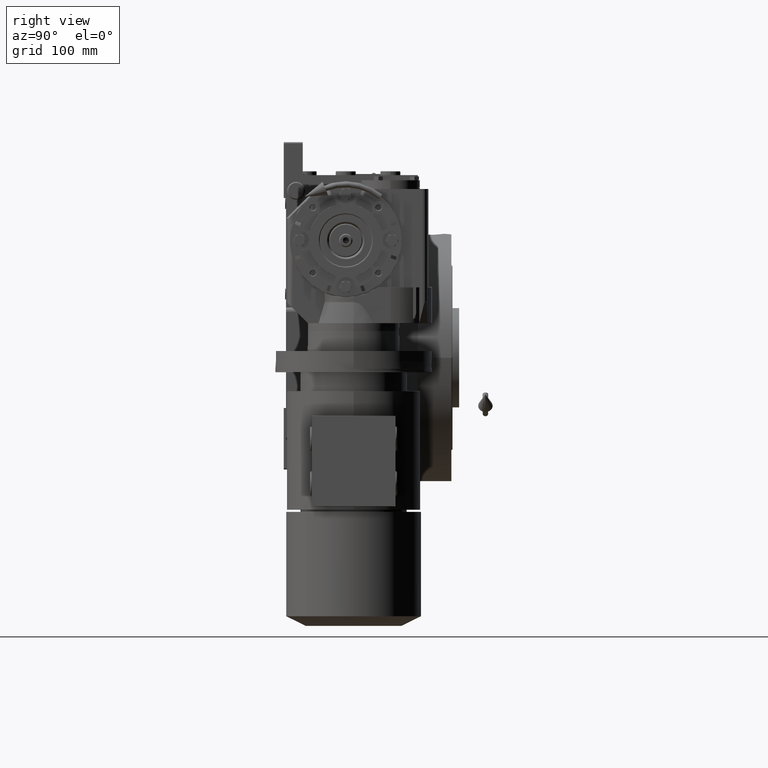
[diagram: clean part render]
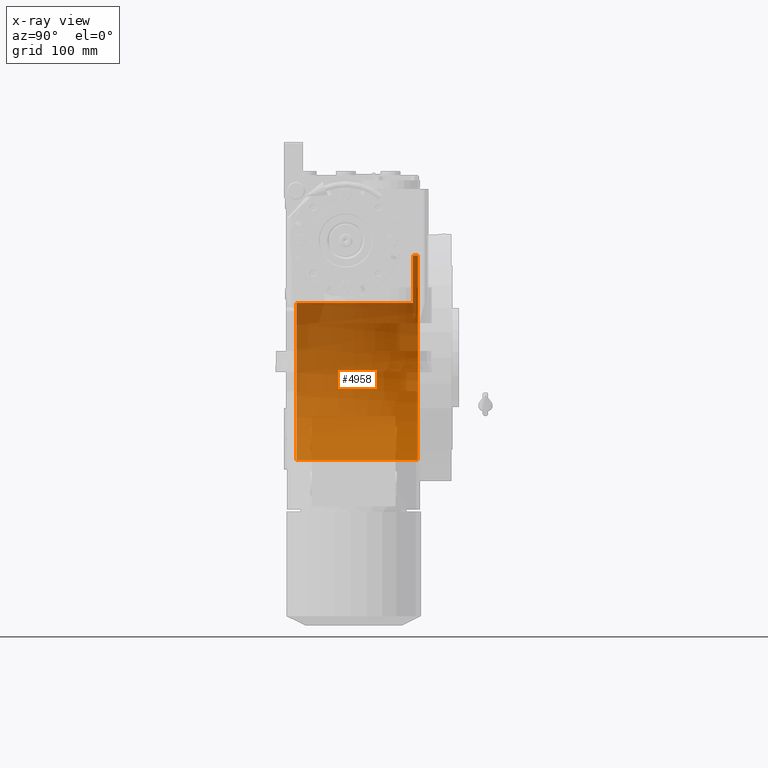
[diagram: x-ray — body ghosted, one internal face saturated and labeled with its STEP entity id]
A machine part, right view, then the same camera in x-ray: the body is ghosted and one INTERNAL B-rep face — a face not visible from any outside direction — is saturated and labeled: STEP entity #4958.
In plain terms, the highlighted cylindrical surface (partial cylindrical patch) has radius 91.5 mm, axis along (0, -1, 0).
Its self-contained STEP definition (entity closure, byte-faithful):
#366 = CARTESIAN_POINT ( 'NONE',  ( -77.27386362800814368, -44.00000000000000000, 49.00000000000000000 ) ) ;
#2560 = ORIENTED_EDGE ( 'NONE', *, *, #5839, .F. ) ;
#4958 = ADVANCED_FACE ( 'NONE', ( #20423 ), #75947, .F. ) ;
#5839 = EDGE_CURVE ( 'NONE', #77325, #90057, #74433, .T. ) ;
#8786 = DIRECTION ( 'NONE',  ( 0.000000000000000000, 0.000000000000000000, 1.000000000000000000 ) ) ;
#9306 = CARTESIAN_POINT ( 'NONE',  ( 0.000000000000000000, -44.00000000000000000, -91.50000000000000000 ) ) ;
#15703 = VERTEX_POINT ( 'NONE', #100200 ) ;
#16121 = ORIENTED_EDGE ( 'NONE', *, *, #27361, .F. ) ;
#16264 = DIRECTION ( 'NONE',  ( 0.000000000000000000, -1.000000000000000000, 0.000000000000000000 ) ) ;
#20423 = FACE_OUTER_BOUND ( 'NONE', #60595, .T. ) ;
#21661 = AXIS2_PLACEMENT_3D ( 'NONE', #44212, #44706, #68597 ) ;
#22927 = DIRECTION ( 'NONE',  ( -0.000000000000000000, -1.000000000000000000, -0.000000000000000000 ) ) ;
#23297 = CARTESIAN_POINT ( 'NONE',  ( 0.000000000000000000, -44.00000000000000000, 0.000000000000000000 ) ) ;
#24980 = CARTESIAN_POINT ( 'NONE',  ( 0.000000000000000000, 69.00000000000004263, -91.50000000000000000 ) ) ;
#25359 = DIRECTION ( 'NONE',  ( -0.000000000000000000, 1.000000000000000000, -0.000000000000000000 ) ) ;
#27361 = EDGE_CURVE ( 'NONE', #47734, #80616, #34261, .T. ) ;
#28276 = CIRCLE ( 'NONE', #21661, 91.50000000000000000 ) ;
#30798 = LINE ( 'NONE', #32867, #67341 ) ;
#30933 = EDGE_CURVE ( 'NONE', #80616, #77325, #72207, .T. ) ;
#32867 = CARTESIAN_POINT ( 'NONE',  ( 1.120551821219827868E-14, 69.00000000000004263, 91.50000000000000000 ) ) ;
#34261 = CIRCLE ( 'NONE', #92321, 91.50000000000000000 ) ;
#34944 = ORIENTED_EDGE ( 'NONE', *, *, #87829, .F. ) ;
#35078 = EDGE_CURVE ( 'NONE', #90057, #15703, #55978, .T. ) ;
#39376 = DIRECTION ( 'NONE',  ( 0.000000000000000000, 1.000000000000000000, 0.000000000000000000 ) ) ;
#39528 = CARTESIAN_POINT ( 'NONE',  ( 0.000000000000000000, 64.50000000000000000, 0.000000000000000000 ) ) ;
#43823 = VECTOR ( 'NONE', #98196, 1000.000000000000000 ) ;
#44212 = CARTESIAN_POINT ( 'NONE',  ( 0.000000000000000000, 60.00000000000000000, 0.000000000000000000 ) ) ;
#44706 = DIRECTION ( 'NONE',  ( 0.000000000000000000, 1.000000000000000000, 0.000000000000000000 ) ) ;
#44772 = DIRECTION ( 'NONE',  ( 0.000000000000000000, -1.000000000000000000, 0.000000000000000000 ) ) ;
#47734 = VERTEX_POINT ( 'NONE', #80363 ) ;
#49399 = VERTEX_POINT ( 'NONE', #74326 ) ;
#52061 = DIRECTION ( 'NONE',  ( 0.000000000000000000, 0.000000000000000000, -1.000000000000000000 ) ) ;
#54496 = AXIS2_PLACEMENT_3D ( 'NONE', #23297, #39376, #8786 ) ;
#55978 = LINE ( 'NONE', #72599, #81833 ) ;
#56368 = ORIENTED_EDGE ( 'NONE', *, *, #81602, .T. ) ;
#60595 = EDGE_LOOP ( 'NONE', ( #16121, #56368, #34944, #101529, #2560, #90675 ) ) ;
#62205 = CARTESIAN_POINT ( 'NONE',  ( 0.000000000000000000, 64.50000000000000000, -91.50000000000000000 ) ) ;
#67341 = VECTOR ( 'NONE', #16264, 1000.000000000000000 ) ;
#68597 = DIRECTION ( 'NONE',  ( 1.776356839400250465E-15, 0.000000000000000000, -1.000000000000000000 ) ) ;
#72207 = LINE ( 'NONE', #24980, #43823 ) ;
#72599 = CARTESIAN_POINT ( 'NONE',  ( -77.27386362800812947, 69.00000000000004263, 48.99999999999998579 ) ) ;
#74326 = CARTESIAN_POINT ( 'NONE',  ( 1.120551821219827868E-14, 60.00000000000000000, 91.50000000000000000 ) ) ;
#74433 = CIRCLE ( 'NONE', #54496, 91.50000000000000000 ) ;
#75947 = CYLINDRICAL_SURFACE ( 'NONE', #86416, 91.50000000000000000 ) ;
#77325 = VERTEX_POINT ( 'NONE', #9306 ) ;
#79478 = DIRECTION ( 'NONE',  ( 0.000000000000000000, 0.000000000000000000, 1.000000000000000000 ) ) ;
#80363 = CARTESIAN_POINT ( 'NONE',  ( 1.120551821219827868E-14, 64.50000000000000000, 91.50000000000000000 ) ) ;
#80616 = VERTEX_POINT ( 'NONE', #62205 ) ;
#81602 = EDGE_CURVE ( 'NONE', #47734, #49399, #30798, .T. ) ;
#81833 = VECTOR ( 'NONE', #25359, 1000.000000000000000 ) ;
#86416 = AXIS2_PLACEMENT_3D ( 'NONE', #92569, #44772, #52061 ) ;
#87829 = EDGE_CURVE ( 'NONE', #15703, #49399, #28276, .T. ) ;
#90057 = VERTEX_POINT ( 'NONE', #366 ) ;
#90675 = ORIENTED_EDGE ( 'NONE', *, *, #30933, .F. ) ;
#92321 = AXIS2_PLACEMENT_3D ( 'NONE', #39528, #22927, #79478 ) ;
#92569 = CARTESIAN_POINT ( 'NONE',  ( 0.000000000000000000, 69.00000000000004263, 0.000000000000000000 ) ) ;
#98196 = DIRECTION ( 'NONE',  ( 0.000000000000000000, -1.000000000000000000, 0.000000000000000000 ) ) ;
#100200 = CARTESIAN_POINT ( 'NONE',  ( -77.27386362800814368, 60.00000000000000000, 48.99999999999998579 ) ) ;
#101529 = ORIENTED_EDGE ( 'NONE', *, *, #35078, .F. ) ;